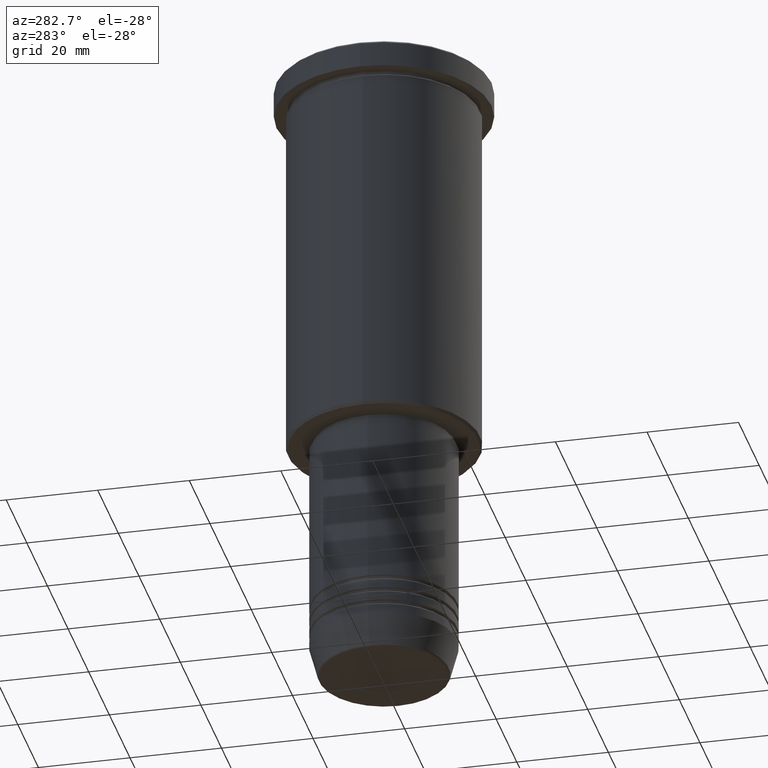
[diagram: clean part render]
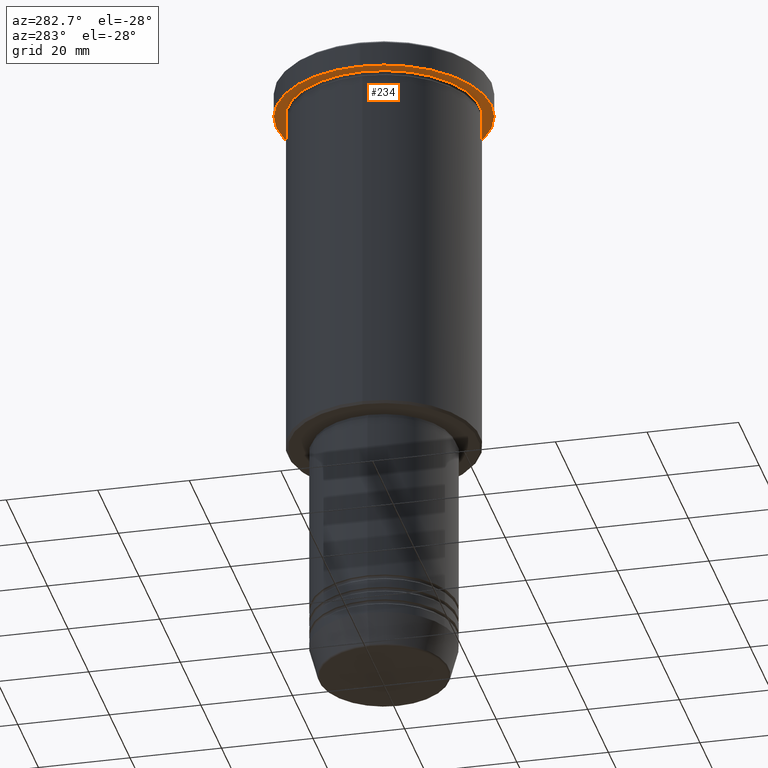
[diagram: same view with one face highlighted and labeled with its STEP entity id]
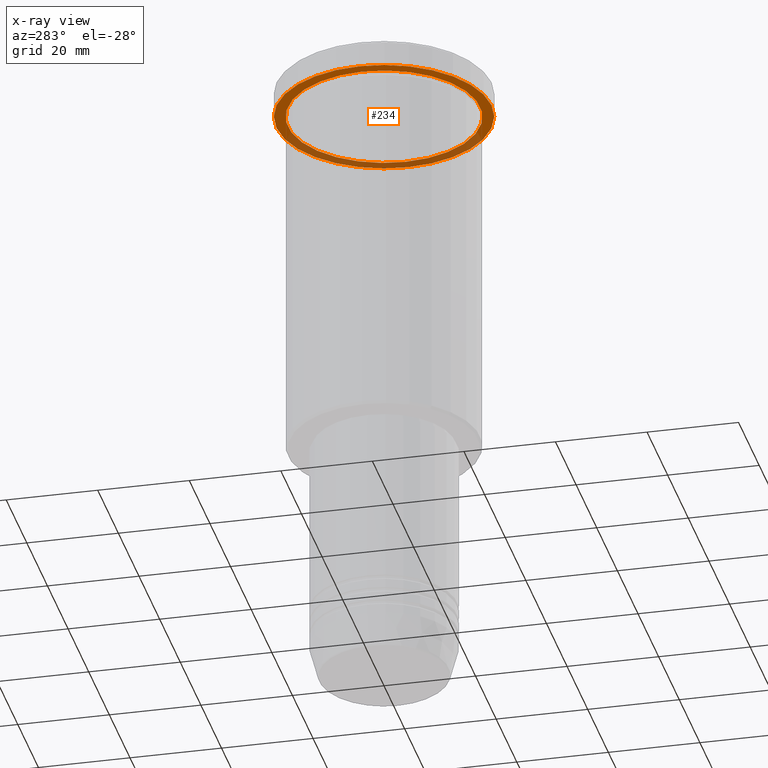
[diagram: x-ray of the same camera — body ghosted, the highlighted face saturated]
A machine part, auxiliary view. The second image highlights one B-rep face of the part: STEP entity #234.
The next image is the same camera in x-ray: the body ghosted, the highlighted face saturated — about 37% of this face is hidden behind the body in this view.
In plain terms, the highlighted planar face has unit normal (0, 0, -1).
Its self-contained STEP definition (entity closure, byte-faithful):
#6 = CIRCLE ( 'NONE', #27, 23.50000000000000000 ) ;
#27 = AXIS2_PLACEMENT_3D ( 'NONE', #754, #292, #484 ) ;
#73 = AXIS2_PLACEMENT_3D ( 'NONE', #757, #491, #763 ) ;
#118 = AXIS2_PLACEMENT_3D ( 'NONE', #534, #526, #822 ) ;
#234 = ADVANCED_FACE ( 'NONE', ( #466, #911 ), #1177, .T. ) ;
#247 = AXIS2_PLACEMENT_3D ( 'NONE', #738, #920, #832 ) ;
#255 = CARTESIAN_POINT ( 'NONE',  ( 21.00000000000000000, 2.571758278209441661E-15, -5.999999999999994671 ) ) ;
#292 = DIRECTION ( 'NONE',  ( -0.000000000000000000, -0.000000000000000000, 1.000000000000000000 ) ) ;
#303 = CIRCLE ( 'NONE', #118, 21.00000000000000000 ) ;
#334 = VERTEX_POINT ( 'NONE', #458 ) ;
#343 = EDGE_CURVE ( 'NONE', #708, #956, #780, .T. ) ;
#360 = AXIS2_PLACEMENT_3D ( 'NONE', #827, #371, #1105 ) ;
#371 = DIRECTION ( 'NONE',  ( -0.000000000000000000, -0.000000000000000000, 1.000000000000000000 ) ) ;
#431 = EDGE_CURVE ( 'NONE', #334, #737, #988, .T. ) ;
#435 = ORIENTED_EDGE ( 'NONE', *, *, #485, .F. ) ;
#458 = CARTESIAN_POINT ( 'NONE',  ( -21.00000000000000000, 0.000000000000000000, -5.999999999999994671 ) ) ;
#466 = FACE_BOUND ( 'NONE', #816, .T. ) ;
#484 = DIRECTION ( 'NONE',  ( 1.000000000000000000, 0.000000000000000000, 0.000000000000000000 ) ) ;
#485 = EDGE_CURVE ( 'NONE', #956, #708, #6, .T. ) ;
#491 = DIRECTION ( 'NONE',  ( -0.000000000000000000, -0.000000000000000000, 1.000000000000000000 ) ) ;
#526 = DIRECTION ( 'NONE',  ( -0.000000000000000000, -0.000000000000000000, 1.000000000000000000 ) ) ;
#534 = CARTESIAN_POINT ( 'NONE',  ( 0.000000000000000000, 0.000000000000000000, -5.999999999999994671 ) ) ;
#626 = ORIENTED_EDGE ( 'NONE', *, *, #343, .F. ) ;
#658 = EDGE_CURVE ( 'NONE', #737, #334, #303, .T. ) ;
#675 = CARTESIAN_POINT ( 'NONE',  ( -23.50000000000000000, 2.877919977996280320E-15, -5.999999999999994671 ) ) ;
#704 = ORIENTED_EDGE ( 'NONE', *, *, #658, .T. ) ;
#708 = VERTEX_POINT ( 'NONE', #890 ) ;
#716 = ORIENTED_EDGE ( 'NONE', *, *, #431, .T. ) ;
#737 = VERTEX_POINT ( 'NONE', #255 ) ;
#738 = CARTESIAN_POINT ( 'NONE',  ( 0.000000000000000000, 23.50000000000000000, -5.999999999999994671 ) ) ;
#754 = CARTESIAN_POINT ( 'NONE',  ( 0.000000000000000000, 0.000000000000000000, -5.999999999999994671 ) ) ;
#757 = CARTESIAN_POINT ( 'NONE',  ( 0.000000000000000000, 0.000000000000000000, -5.999999999999994671 ) ) ;
#763 = DIRECTION ( 'NONE',  ( -1.000000000000000000, 0.000000000000000000, 0.000000000000000000 ) ) ;
#780 = CIRCLE ( 'NONE', #360, 23.50000000000000000 ) ;
#816 = EDGE_LOOP ( 'NONE', ( #716, #704 ) ) ;
#822 = DIRECTION ( 'NONE',  ( -1.000000000000000000, 0.000000000000000000, 0.000000000000000000 ) ) ;
#827 = CARTESIAN_POINT ( 'NONE',  ( 0.000000000000000000, 0.000000000000000000, -5.999999999999994671 ) ) ;
#832 = DIRECTION ( 'NONE',  ( -1.000000000000000000, 0.000000000000000000, -0.000000000000000000 ) ) ;
#890 = CARTESIAN_POINT ( 'NONE',  ( 23.50000000000000000, 0.000000000000000000, -5.999999999999994671 ) ) ;
#911 = FACE_OUTER_BOUND ( 'NONE', #1011, .T. ) ;
#920 = DIRECTION ( 'NONE',  ( 0.000000000000000000, 0.000000000000000000, -1.000000000000000000 ) ) ;
#956 = VERTEX_POINT ( 'NONE', #675 ) ;
#988 = CIRCLE ( 'NONE', #73, 21.00000000000000000 ) ;
#1011 = EDGE_LOOP ( 'NONE', ( #626, #435 ) ) ;
#1105 = DIRECTION ( 'NONE',  ( 1.000000000000000000, 0.000000000000000000, 0.000000000000000000 ) ) ;
#1177 = PLANE ( 'NONE',  #247 ) ;